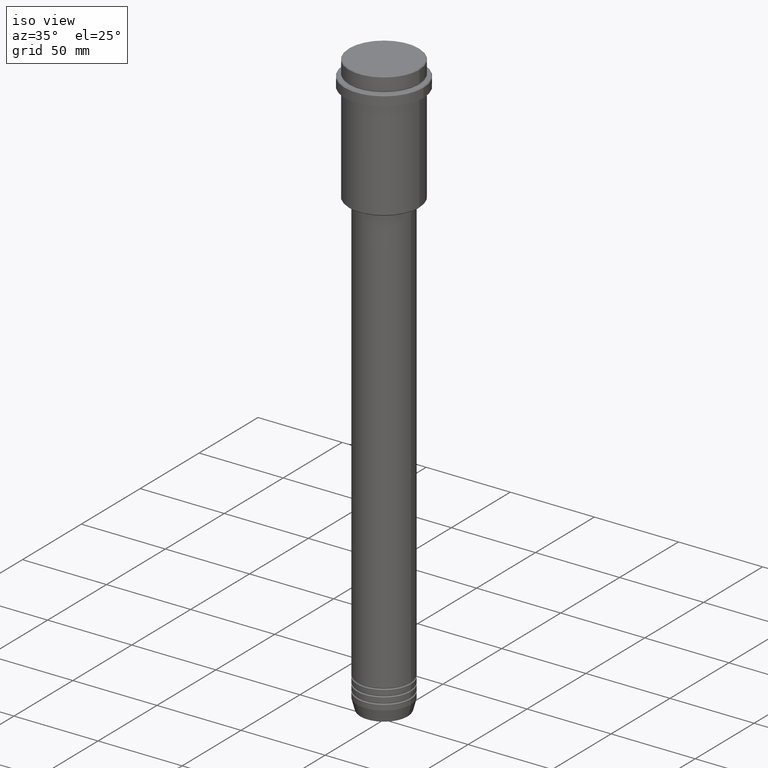
[diagram: clean part render]
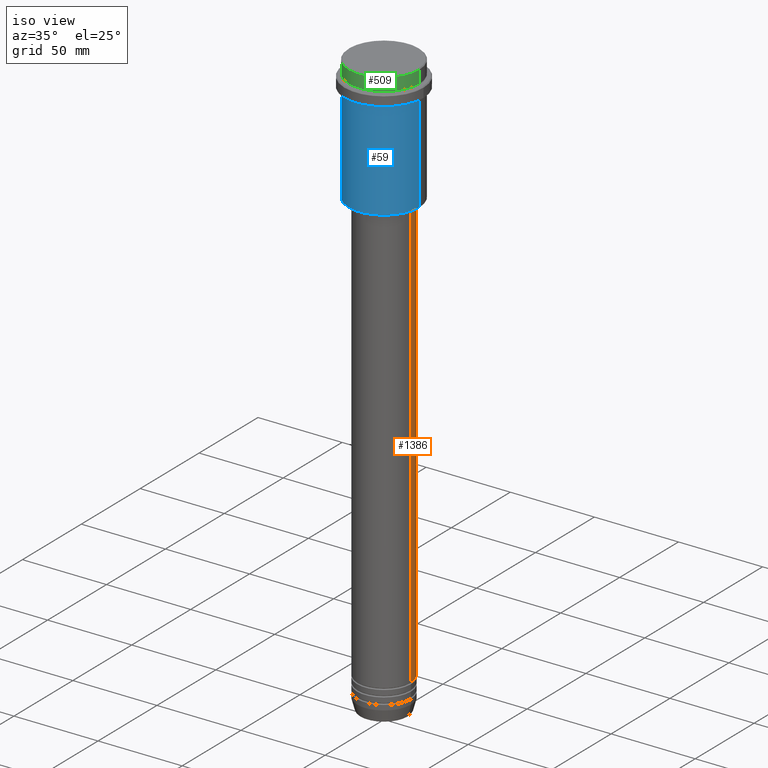
[diagram: same view with three faces highlighted in distinct colors, each labeled with its STEP entity id]
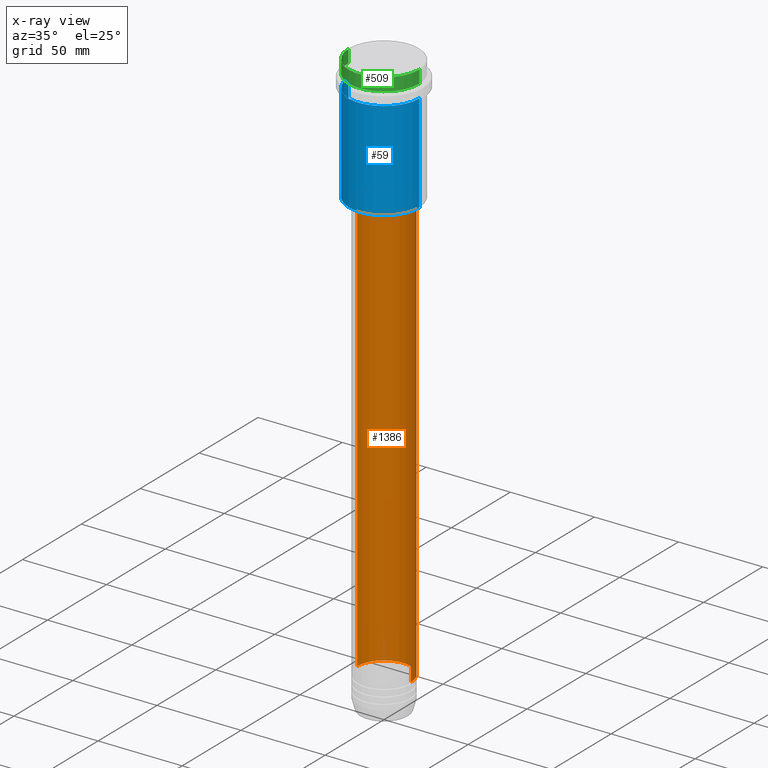
[diagram: x-ray of the same camera — body ghosted, the three highlighted faces saturated]
A machine part, iso view with three faces highlighted in distinct colors.
The next image is the same camera in x-ray (body ghosted, the three faces saturated) — at least one of them is partly hidden behind the body in this view.
Their STEP definitions:

[orange] entity #1386 — the highlighted cylindrical surface (edge-blend (fillet) strip) has radius 16 mm, axis along (-0, -0, 1).
#23 = VERTEX_POINT ( 'NONE', #298 ) ;
#28 = DIRECTION ( 'NONE',  ( -0.000000000000000000, -0.000000000000000000, 1.000000000000000000 ) ) ;
#44 = CARTESIAN_POINT ( 'NONE',  ( 0.000000000000000000, 0.000000000000000000, -75.99999999999992895 ) ) ;
#103 = CARTESIAN_POINT ( 'NONE',  ( -16.00000000000000355, 1.959434878635765526E-15, -75.99999999999992895 ) ) ;
#109 = VECTOR ( 'NONE', #332, 1000.000000000000000 ) ;
#115 = LINE ( 'NONE', #329, #383 ) ;
#198 = EDGE_LOOP ( 'NONE', ( #728, #533, #927, #1109 ) ) ;
#207 = EDGE_CURVE ( 'NONE', #392, #23, #619, .T. ) ;
#252 = VERTEX_POINT ( 'NONE', #1067 ) ;
#295 = CARTESIAN_POINT ( 'NONE',  ( 0.000000000000000000, 0.000000000000000000, -330.9999999999998863 ) ) ;
#298 = CARTESIAN_POINT ( 'NONE',  ( -16.00000000000000000, 1.959434878635765131E-15, -330.9999999999998863 ) ) ;
#329 = CARTESIAN_POINT ( 'NONE',  ( 16.00000000000000000, 0.000000000000000000, 0.000000000000000000 ) ) ;
#332 = DIRECTION ( 'NONE',  ( -0.000000000000000000, -0.000000000000000000, 1.000000000000000000 ) ) ;
#334 = DIRECTION ( 'NONE',  ( -0.000000000000000000, -0.000000000000000000, 1.000000000000000000 ) ) ;
#383 = VECTOR ( 'NONE', #334, 1000.000000000000000 ) ;
#392 = VERTEX_POINT ( 'NONE', #695 ) ;
#418 = CARTESIAN_POINT ( 'NONE',  ( -16.00000000000000000, 1.959434878635765131E-15, 0.000000000000000000 ) ) ;
#460 = FACE_OUTER_BOUND ( 'NONE', #198, .T. ) ;
#533 = ORIENTED_EDGE ( 'NONE', *, *, #1184, .T. ) ;
#619 = CIRCLE ( 'NONE', #1169, 16.00000000000000000 ) ;
#688 = DIRECTION ( 'NONE',  ( 1.000000000000000000, 0.000000000000000000, 0.000000000000000000 ) ) ;
#695 = CARTESIAN_POINT ( 'NONE',  ( 16.00000000000000000, 0.000000000000000000, -330.9999999999998863 ) ) ;
#717 = AXIS2_PLACEMENT_3D ( 'NONE', #806, #814, #688 ) ;
#723 = DIRECTION ( 'NONE',  ( 1.000000000000000000, 0.000000000000000000, 0.000000000000000000 ) ) ;
#728 = ORIENTED_EDGE ( 'NONE', *, *, #207, .T. ) ;
#732 = DIRECTION ( 'NONE',  ( -0.000000000000000000, -0.000000000000000000, 1.000000000000000000 ) ) ;
#764 = CIRCLE ( 'NONE', #1037, 16.00000000000000355 ) ;
#775 = EDGE_CURVE ( 'NONE', #392, #252, #115, .T. ) ;
#786 = VERTEX_POINT ( 'NONE', #103 ) ;
#806 = CARTESIAN_POINT ( 'NONE',  ( 0.000000000000000000, 0.000000000000000000, 0.000000000000000000 ) ) ;
#814 = DIRECTION ( 'NONE',  ( -0.000000000000000000, -0.000000000000000000, 1.000000000000000000 ) ) ;
#825 = EDGE_CURVE ( 'NONE', #252, #786, #764, .T. ) ;
#927 = ORIENTED_EDGE ( 'NONE', *, *, #825, .F. ) ;
#1037 = AXIS2_PLACEMENT_3D ( 'NONE', #44, #28, #1250 ) ;
#1067 = CARTESIAN_POINT ( 'NONE',  ( 16.00000000000000355, 0.000000000000000000, -75.99999999999992895 ) ) ;
#1109 = ORIENTED_EDGE ( 'NONE', *, *, #775, .F. ) ;
#1135 = CYLINDRICAL_SURFACE ( 'NONE', #717, 16.00000000000000000 ) ;
#1169 = AXIS2_PLACEMENT_3D ( 'NONE', #295, #732, #723 ) ;
#1184 = EDGE_CURVE ( 'NONE', #23, #786, #1398, .T. ) ;
#1250 = DIRECTION ( 'NONE',  ( 1.000000000000000000, 0.000000000000000000, 0.000000000000000000 ) ) ;
#1386 = ADVANCED_FACE ( 'NONE', ( #460 ), #1135, .T. ) ;
#1398 = LINE ( 'NONE', #418, #109 ) ;

[blue] entity #59 — the highlighted cylindrical surface (partial cylindrical patch) has radius 21 mm, axis along (-0, -0, 1).
#26 = EDGE_CURVE ( 'NONE', #57, #582, #1011, .T. ) ;
#33 = CARTESIAN_POINT ( 'NONE',  ( 0.000000000000000000, 0.000000000000000000, -16.00000000000000355 ) ) ;
#57 = VERTEX_POINT ( 'NONE', #95 ) ;
#59 = ADVANCED_FACE ( 'NONE', ( #79 ), #630, .T. ) ;
#70 = CARTESIAN_POINT ( 'NONE',  ( 20.99999999999999645, 0.000000000000000000, 0.000000000000000000 ) ) ;
#79 = FACE_OUTER_BOUND ( 'NONE', #1019, .T. ) ;
#95 = CARTESIAN_POINT ( 'NONE',  ( -20.99999999999999645, 2.571758278209441267E-15, -74.49999999999997158 ) ) ;
#159 = CARTESIAN_POINT ( 'NONE',  ( 20.99999999999999645, 0.000000000000000000, -16.00000000000000355 ) ) ;
#166 = CARTESIAN_POINT ( 'NONE',  ( -20.99999999999999645, 2.571758278209441267E-15, -16.00000000000000355 ) ) ;
#199 = VECTOR ( 'NONE', #201, 1000.000000000000000 ) ;
#201 = DIRECTION ( 'NONE',  ( -0.000000000000000000, -0.000000000000000000, 1.000000000000000000 ) ) ;
#222 = VECTOR ( 'NONE', #330, 1000.000000000000000 ) ;
#330 = DIRECTION ( 'NONE',  ( -0.000000000000000000, -0.000000000000000000, 1.000000000000000000 ) ) ;
#342 = EDGE_CURVE ( 'NONE', #57, #529, #998, .T. ) ;
#368 = ORIENTED_EDGE ( 'NONE', *, *, #979, .F. ) ;
#395 = DIRECTION ( 'NONE',  ( -0.000000000000000000, -0.000000000000000000, 1.000000000000000000 ) ) ;
#408 = DIRECTION ( 'NONE',  ( -1.000000000000000000, 0.000000000000000000, 0.000000000000000000 ) ) ;
#436 = AXIS2_PLACEMENT_3D ( 'NONE', #1383, #1162, #408 ) ;
#502 = VERTEX_POINT ( 'NONE', #159 ) ;
#529 = VERTEX_POINT ( 'NONE', #166 ) ;
#551 = AXIS2_PLACEMENT_3D ( 'NONE', #1195, #395, #843 ) ;
#582 = VERTEX_POINT ( 'NONE', #639 ) ;
#630 = CYLINDRICAL_SURFACE ( 'NONE', #551, 20.99999999999999645 ) ;
#639 = CARTESIAN_POINT ( 'NONE',  ( 20.99999999999999645, 0.000000000000000000, -74.49999999999997158 ) ) ;
#640 = EDGE_CURVE ( 'NONE', #582, #502, #738, .T. ) ;
#682 = ORIENTED_EDGE ( 'NONE', *, *, #640, .T. ) ;
#738 = LINE ( 'NONE', #70, #199 ) ;
#798 = CARTESIAN_POINT ( 'NONE',  ( -20.99999999999999645, 2.571758278209441267E-15, 0.000000000000000000 ) ) ;
#843 = DIRECTION ( 'NONE',  ( 1.000000000000000000, 0.000000000000000000, 0.000000000000000000 ) ) ;
#873 = ORIENTED_EDGE ( 'NONE', *, *, #342, .F. ) ;
#939 = DIRECTION ( 'NONE',  ( -0.000000000000000000, -0.000000000000000000, 1.000000000000000000 ) ) ;
#979 = EDGE_CURVE ( 'NONE', #529, #502, #1393, .T. ) ;
#998 = LINE ( 'NONE', #798, #222 ) ;
#1011 = CIRCLE ( 'NONE', #436, 20.99999999999999645 ) ;
#1019 = EDGE_LOOP ( 'NONE', ( #873, #1087, #682, #368 ) ) ;
#1087 = ORIENTED_EDGE ( 'NONE', *, *, #26, .T. ) ;
#1144 = AXIS2_PLACEMENT_3D ( 'NONE', #33, #939, #1367 ) ;
#1162 = DIRECTION ( 'NONE',  ( -0.000000000000000000, -0.000000000000000000, 1.000000000000000000 ) ) ;
#1195 = CARTESIAN_POINT ( 'NONE',  ( 0.000000000000000000, 0.000000000000000000, 0.000000000000000000 ) ) ;
#1367 = DIRECTION ( 'NONE',  ( 1.000000000000000000, 0.000000000000000000, 0.000000000000000000 ) ) ;
#1383 = CARTESIAN_POINT ( 'NONE',  ( 0.000000000000000000, 0.000000000000000000, -74.49999999999997158 ) ) ;
#1393 = CIRCLE ( 'NONE', #1144, 20.99999999999999645 ) ;

[green] entity #509 — the highlighted cylindrical surface (partial cylindrical patch) has radius 21 mm, axis along (-0, -0, 1).
#8 = CARTESIAN_POINT ( 'NONE',  ( 20.99999999999999645, 0.000000000000000000, -7.999999999999998224 ) ) ;
#38 = AXIS2_PLACEMENT_3D ( 'NONE', #382, #1292, #965 ) ;
#43 = AXIS2_PLACEMENT_3D ( 'NONE', #260, #1134, #52 ) ;
#52 = DIRECTION ( 'NONE',  ( 1.000000000000000000, 0.000000000000000000, 0.000000000000000000 ) ) ;
#83 = CARTESIAN_POINT ( 'NONE',  ( 0.000000000000000000, 0.000000000000000000, -7.999999999999998224 ) ) ;
#143 = EDGE_LOOP ( 'NONE', ( #586, #1344, #1416, #974 ) ) ;
#164 = VERTEX_POINT ( 'NONE', #272 ) ;
#167 = EDGE_CURVE ( 'NONE', #1145, #164, #1238, .T. ) ;
#195 = DIRECTION ( 'NONE',  ( -0.000000000000000000, -0.000000000000000000, 1.000000000000000000 ) ) ;
#232 = EDGE_CURVE ( 'NONE', #371, #1145, #1183, .T. ) ;
#255 = EDGE_CURVE ( 'NONE', #429, #371, #438, .T. ) ;
#260 = CARTESIAN_POINT ( 'NONE',  ( 0.000000000000000000, 0.000000000000000000, 0.000000000000000000 ) ) ;
#262 = EDGE_CURVE ( 'NONE', #429, #164, #933, .T. ) ;
#272 = CARTESIAN_POINT ( 'NONE',  ( -20.99999999999999645, 2.571758278209441267E-15, -0.5000000000000350830 ) ) ;
#371 = VERTEX_POINT ( 'NONE', #8 ) ;
#382 = CARTESIAN_POINT ( 'NONE',  ( 0.000000000000000000, 0.000000000000000000, -0.5000000000000350830 ) ) ;
#429 = VERTEX_POINT ( 'NONE', #714 ) ;
#438 = CIRCLE ( 'NONE', #648, 20.99999999999999645 ) ;
#496 = DIRECTION ( 'NONE',  ( -0.000000000000000000, -0.000000000000000000, 1.000000000000000000 ) ) ;
#509 = ADVANCED_FACE ( 'NONE', ( #1362 ), #701, .T. ) ;
#523 = CARTESIAN_POINT ( 'NONE',  ( -20.99999999999999645, 2.571758278209441267E-15, 0.000000000000000000 ) ) ;
#553 = VECTOR ( 'NONE', #195, 1000.000000000000000 ) ;
#586 = ORIENTED_EDGE ( 'NONE', *, *, #262, .F. ) ;
#648 = AXIS2_PLACEMENT_3D ( 'NONE', #83, #834, #1078 ) ;
#701 = CYLINDRICAL_SURFACE ( 'NONE', #43, 20.99999999999999645 ) ;
#714 = CARTESIAN_POINT ( 'NONE',  ( -20.99999999999999645, 2.571758278209441267E-15, -7.999999999999998224 ) ) ;
#727 = CARTESIAN_POINT ( 'NONE',  ( 20.99999999999999645, 0.000000000000000000, -0.5000000000000350830 ) ) ;
#834 = DIRECTION ( 'NONE',  ( -0.000000000000000000, -0.000000000000000000, 1.000000000000000000 ) ) ;
#903 = VECTOR ( 'NONE', #496, 1000.000000000000000 ) ;
#933 = LINE ( 'NONE', #523, #903 ) ;
#965 = DIRECTION ( 'NONE',  ( 1.000000000000000000, 0.000000000000000000, 0.000000000000000000 ) ) ;
#974 = ORIENTED_EDGE ( 'NONE', *, *, #167, .T. ) ;
#1078 = DIRECTION ( 'NONE',  ( 1.000000000000000000, 0.000000000000000000, 0.000000000000000000 ) ) ;
#1134 = DIRECTION ( 'NONE',  ( -0.000000000000000000, -0.000000000000000000, 1.000000000000000000 ) ) ;
#1145 = VERTEX_POINT ( 'NONE', #727 ) ;
#1155 = CARTESIAN_POINT ( 'NONE',  ( 20.99999999999999645, 0.000000000000000000, 0.000000000000000000 ) ) ;
#1183 = LINE ( 'NONE', #1155, #553 ) ;
#1238 = CIRCLE ( 'NONE', #38, 20.99999999999999645 ) ;
#1292 = DIRECTION ( 'NONE',  ( 0.000000000000000000, 0.000000000000000000, -1.000000000000000000 ) ) ;
#1344 = ORIENTED_EDGE ( 'NONE', *, *, #255, .T. ) ;
#1362 = FACE_OUTER_BOUND ( 'NONE', #143, .T. ) ;
#1416 = ORIENTED_EDGE ( 'NONE', *, *, #232, .T. ) ;